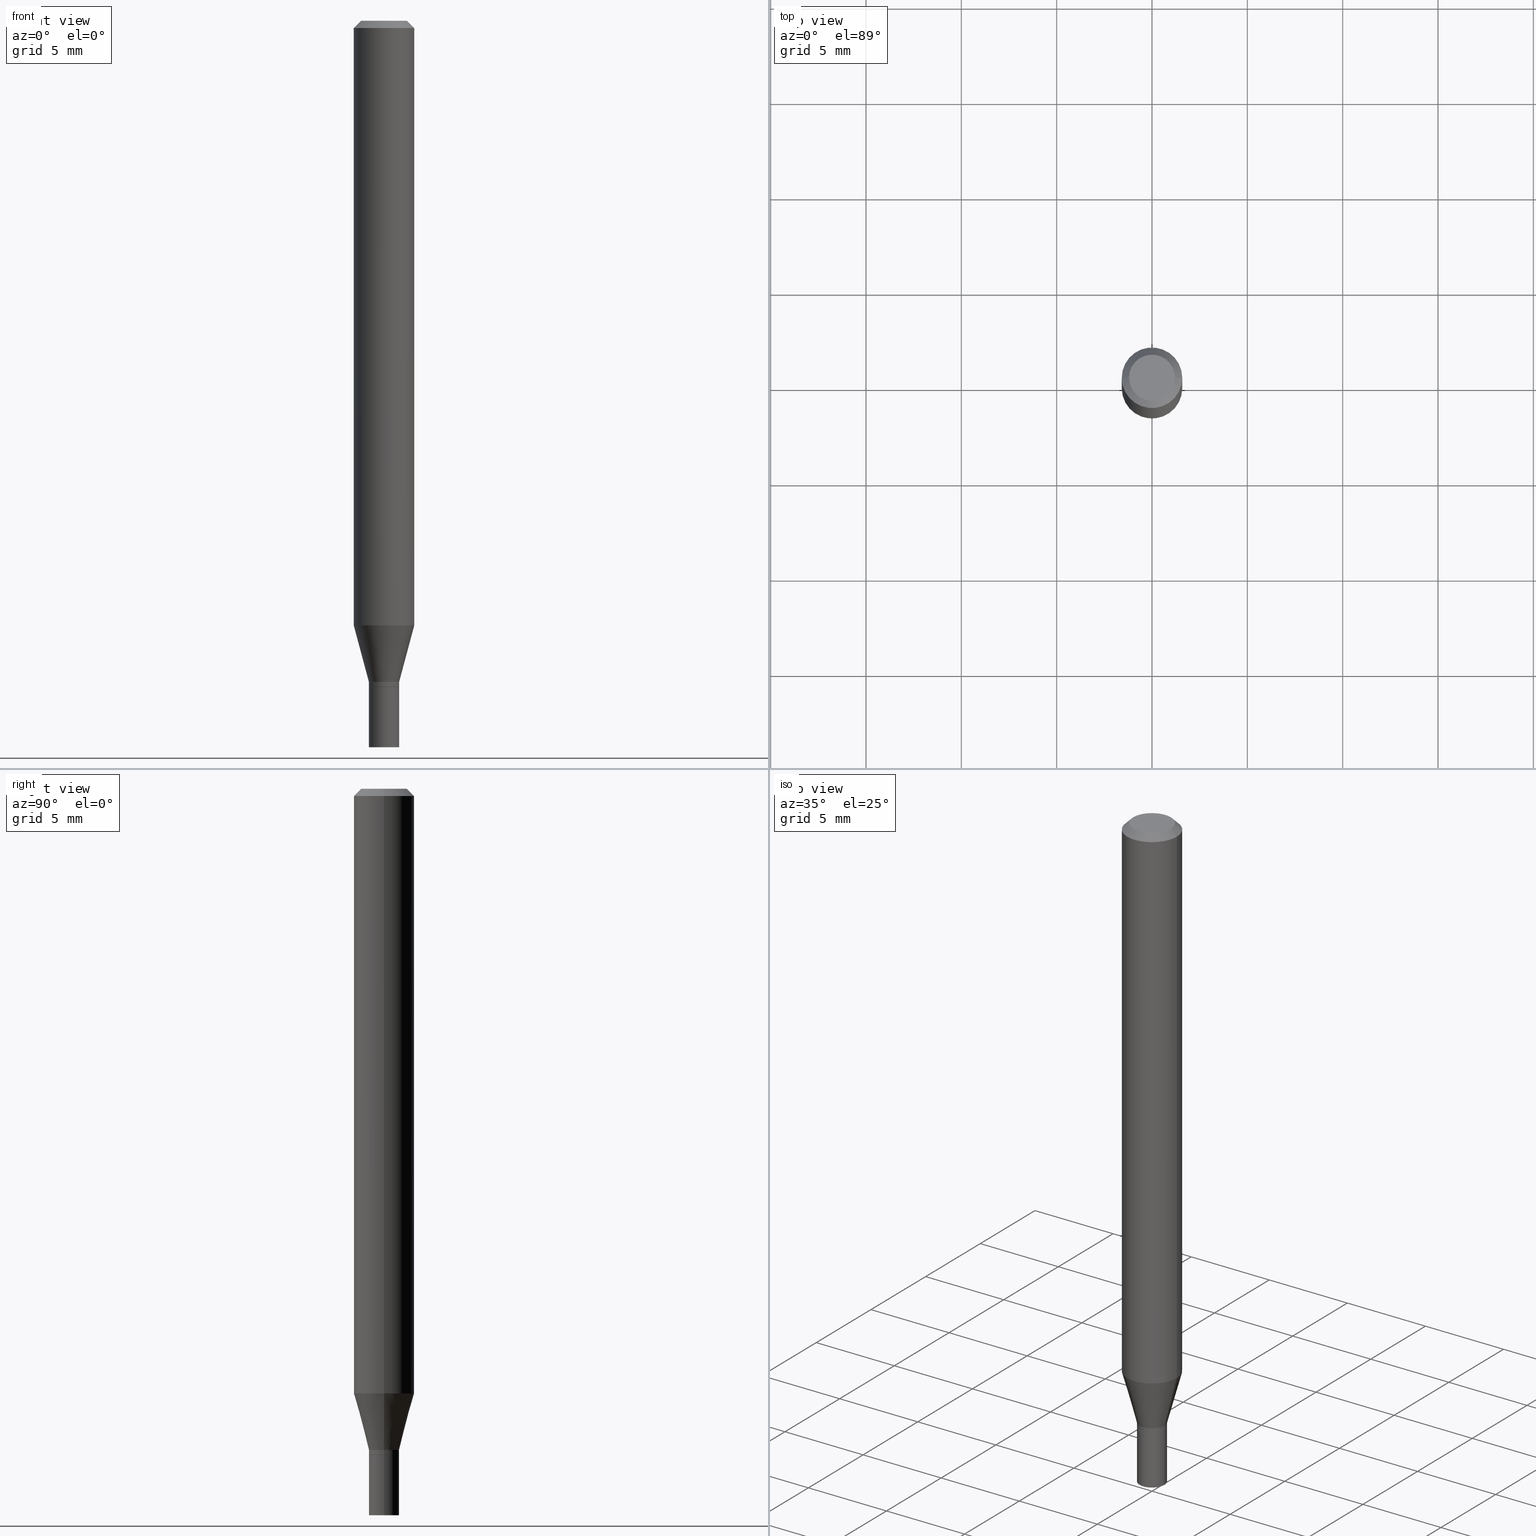
[diagram: canonical four-view strip — front | top / right | iso, engineering-drawing reading convention]
A machine part, canonical four-view strip (front | top / right | iso — engineering-drawing reading convention). The complete STEP part file that produces these views, byte-faithful:
ISO-10303-21;
HEADER;
FILE_DESCRIPTION (( 'STEP AP203' ),
    '1' );
FILE_NAME ('31750.STEP',
    '2024-03-13T16:35:21',
    ( '' ),
    ( '' ),
    'SwSTEP 2.0',
    'SolidWorks 2023',
    '' );
FILE_SCHEMA (( 'CONFIG_CONTROL_DESIGN' ));
ENDSEC;

DATA;
#1 = DIRECTION ( 'NONE',  ( -2.445468806185136597E-29, 3.491481338843145583E-15, 1.000000000000000000 ) ) ;
#2 = ORIENTED_EDGE ( 'NONE', *, *, #59, .T. ) ;
#3 = VECTOR ( 'NONE', #295, 39.37007874015748143 ) ;
#4 = PRODUCT_DEFINITION_FORMATION_WITH_SPECIFIED_SOURCE ( 'ANY', '', #251, .NOT_KNOWN. ) ;
#5 = DIRECTION ( 'NONE',  ( 1.000000000000000000, -6.982962677686261189E-15, 0.000000000000000000 ) ) ;
#6 = ORIENTED_EDGE ( 'NONE', *, *, #177, .T. ) ;
#7 = ORIENTED_EDGE ( 'NONE', *, *, #33, .F. ) ;
#8 = CARTESIAN_POINT ( 'NONE',  ( 3.362519608504562260E-29, -4.800786840909324930E-15, -1.375000000000000000 ) ) ;
#9 = CYLINDRICAL_SURFACE ( 'NONE', #111, 0.06250000000000000000 ) ;
#10 = AXIS2_PLACEMENT_3D ( 'NONE', #129, #231, #409 ) ;
#11 = CALENDAR_DATE ( 2024, 13, 3 ) ;
#12 = APPROVAL_PERSON_ORGANIZATION ( #451, #163, #418 ) ;
#13 = FACE_OUTER_BOUND ( 'NONE', #142, .T. ) ;
#14 = EDGE_CURVE ( 'NONE', #284, #464, #133, .T. ) ;
#15 = CARTESIAN_POINT ( 'NONE',  ( 3.338064920442711836E-29, -4.765872027520893280E-15, -1.364999999999999991 ) ) ;
#16 = AXIS2_PLACEMENT_3D ( 'NONE', #318, #146, #352 ) ;
#17 = DIRECTION ( 'NONE',  ( -2.445468806185136597E-29, 3.491481338843145583E-15, 1.000000000000000000 ) ) ;
#18 = ORIENTED_EDGE ( 'NONE', *, *, #239, .T. ) ;
#19 = AXIS2_PLACEMENT_3D ( 'NONE', #290, #325, #78 ) ;
#20 = LOCAL_TIME ( 12, 35, 21.00000000000000000, #240 ) ;
#21 = ORIENTED_EDGE ( 'NONE', *, *, #170, .F. ) ;
#22 = ADVANCED_FACE ( 'NONE', ( #109 ), #85, .T. ) ;
#23 = CYLINDRICAL_SURFACE ( 'NONE', #313, 0.06250000000000000000 ) ;
#24 = EDGE_CURVE ( 'NONE', #62, #218, #343, .T. ) ;
#25 = CARTESIAN_POINT ( 'NONE',  ( 3.338064920442711836E-29, -4.765872027520893280E-15, -1.364999999999999991 ) ) ;
#26 = ORIENTED_EDGE ( 'NONE', *, *, #417, .F. ) ;
#27 = CYLINDRICAL_SURFACE ( 'NONE', #212, 0.03125000000000000694 ) ;
#28 = CLOSED_SHELL ( 'NONE', ( #83, #207, #303, #97 ) ) ;
#29 = CONICAL_SURFACE ( 'NONE', #411, 0.03124999999999966693, 0.2617993877991502405 ) ;
#30 = DIRECTION ( 'NONE',  ( -2.445468806185136597E-29, 3.491481338843145583E-15, 1.000000000000000000 ) ) ;
#31 = ORIENTED_EDGE ( 'NONE', *, *, #196, .F. ) ;
#32 = DIRECTION ( 'NONE',  ( -2.438088387897960049E-29, 3.491481338843145188E-15, 1.000000000000000000 ) ) ;
#33 = EDGE_CURVE ( 'NONE', #62, #186, #449, .T. ) ;
#34 = DIRECTION ( 'NONE',  ( -2.445468806185136597E-29, 3.491481338843145583E-15, 1.000000000000000000 ) ) ;
#35 = DIRECTION ( 'NONE',  ( 1.000000000000000000, -6.982962677686278543E-15, 0.000000000000000000 ) ) ;
#36 = VERTEX_POINT ( 'NONE', #105 ) ;
#37 = ORIENTED_EDGE ( 'NONE', *, *, #239, .F. ) ;
#38 = PLANE ( 'NONE',  #268 ) ;
#39 = AXIS2_PLACEMENT_3D ( 'NONE', #435, #76, #321 ) ;
#40 = VERTEX_POINT ( 'NONE', #385 ) ;
#41 =( GEOMETRIC_REPRESENTATION_CONTEXT ( 3 ) GLOBAL_UNCERTAINTY_ASSIGNED_CONTEXT ( ( #138 ) ) GLOBAL_UNIT_ASSIGNED_CONTEXT ( ( #300, #124, #448 ) ) REPRESENTATION_CONTEXT ( 'NONE', 'WORKASPACE' ) );
#42 = CARTESIAN_POINT ( 'NONE',  ( 3.362519608504562260E-29, -4.800786840909324930E-15, -1.375000000000000000 ) ) ;
#43 = APPLICATION_CONTEXT ( 'configuration controlled 3d designs of mechanical parts and assemblies' ) ;
#44 = DIRECTION ( 'NONE',  ( 1.000000000000000000, -6.982962677686267499E-15, 4.876176775795935232E-29 ) ) ;
#45 = ORIENTED_EDGE ( 'NONE', *, *, #434, .T. ) ;
#46 = PERSON_AND_ORGANIZATION ( #155, #126 ) ;
#47 = EDGE_CURVE ( 'NONE', #70, #69, #280, .T. ) ;
#48 = ORIENTED_EDGE ( 'NONE', *, *, #170, .T. ) ;
#49 = FACE_OUTER_BOUND ( 'NONE', #98, .T. ) ;
#50 = APPROVAL_PERSON_ORGANIZATION ( #340, #271, #278 ) ;
#51 = DIRECTION ( 'NONE',  ( 1.000000000000000000, -6.982962677686274599E-15, 0.000000000000000000 ) ) ;
#52 = DATE_AND_TIME ( #375, #381 ) ;
#53 = CONICAL_SURFACE ( 'NONE', #410, 0.03075000000000000649, 0.7853981633974739252 ) ;
#54 = AXIS2_PLACEMENT_3D ( 'NONE', #368, #204, #364 ) ;
#55 = SECURITY_CLASSIFICATION_LEVEL ( 'unclassified' ) ;
#56 = ORIENTED_EDGE ( 'NONE', *, *, #196, .T. ) ;
#57 = AXIS2_PLACEMENT_3D ( 'NONE', #114, #293, #151 ) ;
#58 = EDGE_LOOP ( 'NONE', ( #432, #249, #227, #220 ) ) ;
#59 = EDGE_CURVE ( 'NONE', #299, #186, #107, .T. ) ;
#60 = APPROVAL_STATUS ( 'not_yet_approved' ) ;
#61 = CARTESIAN_POINT ( 'NONE',  ( 3.362519608504562260E-29, -4.800786840909324930E-15, -1.375000000000000000 ) ) ;
#62 = VERTEX_POINT ( 'NONE', #419 ) ;
#63 = DIRECTION ( 'NONE',  ( -0.2588190451025215166, 5.211531920934551042E-15, 0.9659258262890679791 ) ) ;
#64 = DIRECTION ( 'NONE',  ( 1.000000000000000000, -6.982962677686275388E-15, 0.000000000000000000 ) ) ;
#65 = CIRCLE ( 'NONE', #134, 0.03125000000000000694 ) ;
#66 = ORIENTED_EDGE ( 'NONE', *, *, #403, .F. ) ;
#67 = DIRECTION ( 'NONE',  ( -2.445468806185136877E-29, 3.491481338843145188E-15, 1.000000000000000000 ) ) ;
#68 = LINE ( 'NONE', #228, #380 ) ;
#69 = VERTEX_POINT ( 'NONE', #387 ) ;
#70 = VERTEX_POINT ( 'NONE', #214 ) ;
#71 = FACE_OUTER_BOUND ( 'NONE', #461, .T. ) ;
#72 = FACE_OUTER_BOUND ( 'NONE', #58, .T. ) ;
#73 = DIRECTION ( 'NONE',  ( -2.445468806185136597E-29, 3.491481338843145583E-15, 1.000000000000000000 ) ) ;
#74 = APPROVAL ( #302, 'UNSPECIFIED' ) ;
#75 = ORIENTED_EDGE ( 'NONE', *, *, #452, .T. ) ;
#76 = DIRECTION ( 'NONE',  ( -2.445468806185136597E-29, 3.491481338843145583E-15, 1.000000000000000000 ) ) ;
#77 = CONICAL_SURFACE ( 'NONE', #460, 0.06250000000000000000, 0.7853981633974563836 ) ;
#78 = DIRECTION ( 'NONE',  ( 1.000000000000000000, -6.982962677686267499E-15, 4.852736867747366768E-29 ) ) ;
#79 = ORIENTED_EDGE ( 'NONE', *, *, #363, .T. ) ;
#80 = CC_DESIGN_PERSON_AND_ORGANIZATION_ASSIGNMENT ( #200, #161, ( #251 ) ) ;
#81 = APPROVAL_DATE_TIME ( #52, #74 ) ;
#82 = CARTESIAN_POINT ( 'NONE',  ( 0.000000000000000000, 0.000000000000000000, 0.000000000000000000 ) ) ;
#83 = ADVANCED_FACE ( 'NONE', ( #345 ), #27, .T. ) ;
#84 = EDGE_CURVE ( 'NONE', #186, #62, #339, .T. ) ;
#85 = CONICAL_SURFACE ( 'NONE', #338, 0.03124999999999966693, 0.2617993877991502405 ) ;
#86 = AXIS2_PLACEMENT_3D ( 'NONE', #265, #122, #263 ) ;
#87 = DIRECTION ( 'NONE',  ( 1.000000000000000000, -6.982962677686266711E-15, 0.000000000000000000 ) ) ;
#88 = LOCAL_TIME ( 12, 35, 21.00000000000000000, #275 ) ;
#89 = CARTESIAN_POINT ( 'NONE',  ( 3.052858238161217332E-29, -4.358672472825852637E-15, -1.248373412263471760 ) ) ;
#90 = CARTESIAN_POINT ( 'NONE',  ( 0.03125000000000000694, -5.455439591942414011E-15, -1.500000000000000222 ) ) ;
#91 = CC_DESIGN_PERSON_AND_ORGANIZATION_ASSIGNMENT ( #46, #198, ( #307 ) ) ;
#92 = APPLICATION_CONTEXT ( 'configuration controlled 3d designs of mechanical parts and assemblies' ) ;
#93 = FACE_OUTER_BOUND ( 'NONE', #150, .T. ) ;
#94 = APPROVAL_DATE_TIME ( #457, #271 ) ;
#95 = VECTOR ( 'NONE', #67, 39.37007874015748143 ) ;
#96 = ORIENTED_EDGE ( 'NONE', *, *, #395, .F. ) ;
#97 = ADVANCED_FACE ( 'NONE', ( #314 ), #182, .F. ) ;
#98 = EDGE_LOOP ( 'NONE', ( #351, #104, #6, #397 ) ) ;
#99 = ADVANCED_FACE ( 'NONE', ( #71 ), #23, .T. ) ;
#100 = COORDINATED_UNIVERSAL_TIME_OFFSET ( 5, 0, .BEHIND. ) ;
#101 = CIRCLE ( 'NONE', #304, 0.06250000000000000000 ) ;
#102 = CC_DESIGN_DATE_AND_TIME_ASSIGNMENT ( #423, #174, ( #307 ) ) ;
#103 = APPROVAL_DATE_TIME ( #344, #163 ) ;
#104 = ORIENTED_EDGE ( 'NONE', *, *, #248, .T. ) ;
#105 = CARTESIAN_POINT ( 'NONE',  ( 0.03124999999999993061, -5.017258683917599261E-15, -1.374500000000000055 ) ) ;
#106 = ORIENTED_EDGE ( 'NONE', *, *, #84, .T. ) ;
#107 = LINE ( 'NONE', #390, #95 ) ;
#108 = CYLINDRICAL_SURFACE ( 'NONE', #217, 0.03124999999999979877 ) ;
#109 = FACE_OUTER_BOUND ( 'NONE', #224, .T. ) ;
#110 = DIRECTION ( 'NONE',  ( -0.7071067811865656694, 7.493145998870420424E-15, 0.7071067811865294761 ) ) ;
#111 = AXIS2_PLACEMENT_3D ( 'NONE', #252, #117, #406 ) ;
#112 = DIRECTION ( 'NONE',  ( -0.7071067811865531239, 2.468850131082316225E-15, -0.7071067811865416886 ) ) ;
#113 = EDGE_LOOP ( 'NONE', ( #153, #336 ) ) ;
#114 = CARTESIAN_POINT ( 'NONE',  ( 0.000000000000000000, 0.000000000000000000, 0.000000000000000000 ) ) ;
#115 = EDGE_CURVE ( 'NONE', #36, #62, #121, .T. ) ;
#116 = CARTESIAN_POINT ( 'NONE',  ( 5.895992206697910099E-45, -8.417914271318620386E-31, -2.410986470890828574E-16 ) ) ;
#117 = DIRECTION ( 'NONE',  ( -2.445468806185136597E-29, 3.491481338843145583E-15, 1.000000000000000000 ) ) ;
#118 = VECTOR ( 'NONE', #259, 39.37007874015748143 ) ;
#119 = APPLICATION_PROTOCOL_DEFINITION ( 'international standard', 'config_control_design', 1994, #92 ) ;
#120 = ADVANCED_FACE ( 'NONE', ( #442 ), #443, .F. ) ;
#121 = LINE ( 'NONE', #232, #140 ) ;
#122 = DIRECTION ( 'NONE',  ( -2.445468806185136597E-29, 3.491481338843145583E-15, 1.000000000000000000 ) ) ;
#123 = DIRECTION ( 'NONE',  ( -1.000000000000000000, 6.982962677686265922E-15, -4.876176775795935793E-29 ) ) ;
#124 =( NAMED_UNIT ( * ) PLANE_ANGLE_UNIT ( ) SI_UNIT ( $, .RADIAN. ) );
#125 = CIRCLE ( 'NONE', #10, 0.03125000000000000694 ) ;
#126 = ORGANIZATION ( 'UNSPECIFIED', 'UNSPECIFIED', '' ) ;
#127 = PERSON_AND_ORGANIZATION ( #155, #126 ) ;
#128 = CC_DESIGN_PERSON_AND_ORGANIZATION_ASSIGNMENT ( #171, #377, ( #4 ) ) ;
#129 = CARTESIAN_POINT ( 'NONE',  ( 3.668203209277704895E-29, -5.237222008264718177E-15, -1.500000000000000222 ) ) ;
#130 = CARTESIAN_POINT ( 'NONE',  ( 0.03075000000000000649, -5.015512943248178546E-15, -1.375000000000000000 ) ) ;
#131 = CARTESIAN_POINT ( 'NONE',  ( -0.03124999999999966693, -4.229205342785826785E-15, -1.364999999999999991 ) ) ;
#132 = CALENDAR_DATE ( 2024, 13, 3 ) ;
#133 = CIRCLE ( 'NONE', #369, 0.04749999999999999362 ) ;
#134 = AXIS2_PLACEMENT_3D ( 'NONE', #319, #1, #225 ) ;
#135 = ADVANCED_FACE ( 'NONE', ( #13 ), #405, .T. ) ;
#136 = APPROVAL_STATUS ( 'not_yet_approved' ) ;
#137 = ADVANCED_FACE ( 'NONE', ( #49 ), #358, .T. ) ;
#138 = UNCERTAINTY_MEASURE_WITH_UNIT (LENGTH_MEASURE( 1.000000000000000082E-05 ), #300, 'distance_accuracy_value', 'NONE');
#139 = ORIENTED_EDGE ( 'NONE', *, *, #337, .F. ) ;
#140 = VECTOR ( 'NONE', #160, 39.37007874015748143 ) ;
#141 = EDGE_LOOP ( 'NONE', ( #283, #180, #143, #26 ) ) ;
#142 = EDGE_LOOP ( 'NONE', ( #157, #229, #436, #242 ) ) ;
#143 = ORIENTED_EDGE ( 'NONE', *, *, #395, .T. ) ;
#144 = CARTESIAN_POINT ( 'NONE',  ( 0.000000000000000000, 0.000000000000000000, 0.000000000000000000 ) ) ;
#145 = ORIENTED_EDGE ( 'NONE', *, *, #185, .T. ) ;
#146 = DIRECTION ( 'NONE',  ( 2.438088387897960049E-29, -3.491481338843145188E-15, -1.000000000000000000 ) ) ;
#147 = FACE_OUTER_BOUND ( 'NONE', #347, .T. ) ;
#148 = AXIS2_PLACEMENT_3D ( 'NONE', #301, #447, #123 ) ;
#149 = VECTOR ( 'NONE', #203, 39.37007874015748143 ) ;
#150 = EDGE_LOOP ( 'NONE', ( #257, #139 ) ) ;
#151 = DIRECTION ( 'NONE',  ( 1.000000000000000000, -6.982962677686267499E-15, 4.876176775795935793E-29 ) ) ;
#152 = CARTESIAN_POINT ( 'NONE',  ( 0.03075000000000000649, -5.015512943248178546E-15, -1.375000000000000000 ) ) ;
#153 = ORIENTED_EDGE ( 'NONE', *, *, #47, .T. ) ;
#154 = CARTESIAN_POINT ( 'NONE',  ( -0.04749999999999999362, 3.578768372314206562E-16, -2.410986470890852239E-16 ) ) ;
#155 = PERSON ( 'UNSPECIFIED', 'UNSPECIFIED', 'UNSPECIFIED', ('UNSPECIFIED'), ('UNSPECIFIED'), ('UNSPECIFIED') ) ;
#156 = DIRECTION ( 'NONE',  ( -2.445468806185136597E-29, 3.491481338843145583E-15, 1.000000000000000000 ) ) ;
#157 = ORIENTED_EDGE ( 'NONE', *, *, #59, .F. ) ;
#158 = SECURITY_CLASSIFICATION ( '', '', #55 ) ;
#159 = CARTESIAN_POINT ( 'NONE',  ( 3.668203209277705088E-31, -5.237222008264718399E-17, -0.01499999999999999944 ) ) ;
#160 = DIRECTION ( 'NONE',  ( -2.445468806185136877E-29, 3.491481338843145188E-15, 1.000000000000000000 ) ) ;
#161 = PERSON_AND_ORGANIZATION_ROLE ( 'design_owner' ) ;
#162 = DIRECTION ( 'NONE',  ( -2.445468806185136597E-29, 3.491481338843145583E-15, 1.000000000000000000 ) ) ;
#163 = APPROVAL ( #136, 'UNSPECIFIED' ) ;
#164 = VECTOR ( 'NONE', #324, 39.37007874015748143 ) ;
#165 = AXIS2_PLACEMENT_3D ( 'NONE', #159, #17, #87 ) ;
#166 = CARTESIAN_POINT ( 'NONE',  ( 0.06250000000000000000, -4.811533449433679005E-16, -0.01499999999999999944 ) ) ;
#167 = PLANE ( 'NONE',  #370 ) ;
#168 = PERSON_AND_ORGANIZATION_ROLE ( 'creator' ) ;
#169 = ADVANCED_FACE ( 'NONE', ( #371 ), #53, .T. ) ;
#170 = EDGE_CURVE ( 'NONE', #316, #215, #101, .T. ) ;
#171 = PERSON_AND_ORGANIZATION ( #155, #126 ) ;
#172 = CIRCLE ( 'NONE', #401, 0.03075000000000000649 ) ;
#173 = DIRECTION ( 'NONE',  ( 1.000000000000000000, -6.982962677686267499E-15, 4.852736867747366768E-29 ) ) ;
#174 = DATE_TIME_ROLE ( 'creation_date' ) ;
#175 = CARTESIAN_POINT ( 'NONE',  ( 0.000000000000000000, 0.000000000000000000, 0.000000000000000000 ) ) ;
#176 = DIRECTION ( 'NONE',  ( -2.445468806185136597E-29, 3.491481338843145583E-15, 1.000000000000000000 ) ) ;
#177 = EDGE_CURVE ( 'NONE', #459, #36, #188, .T. ) ;
#178 = ORIENTED_EDGE ( 'NONE', *, *, #47, .F. ) ;
#179 = CIRCLE ( 'NONE', #408, 0.06250000000000000000 ) ;
#180 = ORIENTED_EDGE ( 'NONE', *, *, #403, .T. ) ;
#181 = CARTESIAN_POINT ( 'NONE',  ( 3.668203209277705088E-31, -5.237222008264718399E-17, -0.01499999999999999944 ) ) ;
#182 = PLANE ( 'NONE',  #16 ) ;
#183 = CARTESIAN_POINT ( 'NONE',  ( 3.668203209277704895E-29, -5.237222008264718177E-15, -1.500000000000000222 ) ) ;
#184 = CARTESIAN_POINT ( 'NONE',  ( 3.668203209277705088E-31, -5.237222008264718399E-17, -0.01499999999999999944 ) ) ;
#185 = EDGE_CURVE ( 'NONE', #425, #70, #399, .T. ) ;
#186 = VERTEX_POINT ( 'NONE', #131 ) ;
#187 = DIRECTION ( 'NONE',  ( -2.445468806185136597E-29, 3.491481338843145583E-15, 1.000000000000000000 ) ) ;
#188 = LINE ( 'NONE', #152, #118 ) ;
#189 = AXIS2_PLACEMENT_3D ( 'NONE', #222, #388, #353 ) ;
#190 = ORIENTED_EDGE ( 'NONE', *, *, #192, .T. ) ;
#191 = ORIENTED_EDGE ( 'NONE', *, *, #446, .F. ) ;
#192 = EDGE_CURVE ( 'NONE', #425, #221, #125, .T. ) ;
#193 = CARTESIAN_POINT ( 'NONE',  ( 0.06250000000000000000, -4.364351673553916694E-16, 3.047610484872459871E-30 ) ) ;
#194 = CARTESIAN_POINT ( 'NONE',  ( 0.03125000000000000694, -2.182175836776959087E-16, 1.523805242436230286E-30 ) ) ;
#195 = FACE_OUTER_BOUND ( 'NONE', #223, .T. ) ;
#196 = EDGE_CURVE ( 'NONE', #218, #40, #179, .T. ) ;
#197 = ORIENTED_EDGE ( 'NONE', *, *, #33, .T. ) ;
#198 = PERSON_AND_ORGANIZATION_ROLE ( 'creator' ) ;
#199 = VECTOR ( 'NONE', #323, 39.37007874015748143 ) ;
#200 = PERSON_AND_ORGANIZATION ( #155, #126 ) ;
#201 = DIRECTION ( 'NONE',  ( -2.438088387897960049E-29, 3.491481338843145188E-15, 1.000000000000000000 ) ) ;
#202 = DIRECTION ( 'NONE',  ( -2.445468806185136597E-29, 3.491481338843145583E-15, 1.000000000000000000 ) ) ;
#203 = DIRECTION ( 'NONE',  ( -2.445468806185136877E-29, 3.491481338843145188E-15, 1.000000000000000000 ) ) ;
#204 = DIRECTION ( 'NONE',  ( 0.000000000000000000, 0.000000000000000000, 1.000000000000000000 ) ) ;
#205 = AXIS2_PLACEMENT_3D ( 'NONE', #244, #34, #382 ) ;
#206 = APPLICATION_PROTOCOL_DEFINITION ( 'international standard', 'config_control_design', 1994, #43 ) ;
#207 = ADVANCED_FACE ( 'NONE', ( #93 ), #167, .F. ) ;
#208 = SHAPE_DEFINITION_REPRESENTATION ( #427, #334 ) ;
#209 = ORIENTED_EDGE ( 'NONE', *, *, #298, .T. ) ;
#210 = CARTESIAN_POINT ( 'NONE',  ( 3.338064920442711836E-29, -4.765872027520893280E-15, -1.364999999999999991 ) ) ;
#211 = CIRCLE ( 'NONE', #296, 0.03075000000000000649 ) ;
#212 = AXIS2_PLACEMENT_3D ( 'NONE', #393, #285, #250 ) ;
#213 = PERSON_AND_ORGANIZATION ( #155, #126 ) ;
#214 = CARTESIAN_POINT ( 'NONE',  ( 0.03125000000000000694, -5.019004424587020764E-15, -1.375000000000000000 ) ) ;
#215 = VERTEX_POINT ( 'NONE', #400 ) ;
#216 = DIRECTION ( 'NONE',  ( 1.000000000000000000, -6.982962677686275388E-15, 0.000000000000000000 ) ) ;
#217 = AXIS2_PLACEMENT_3D ( 'NONE', #144, #253, #44 ) ;
#218 = VERTEX_POINT ( 'NONE', #458 ) ;
#219 = DIRECTION ( 'NONE',  ( 1.000000000000000000, -6.982962677686275388E-15, 0.000000000000000000 ) ) ;
#220 = ORIENTED_EDGE ( 'NONE', *, *, #417, .T. ) ;
#221 = VERTEX_POINT ( 'NONE', #404 ) ;
#222 = CARTESIAN_POINT ( 'NONE',  ( 3.668203209277705088E-31, -5.237222008264718399E-17, -0.01499999999999999944 ) ) ;
#223 = EDGE_LOOP ( 'NONE', ( #209, #2, #7, #392 ) ) ;
#224 = EDGE_LOOP ( 'NONE', ( #430, #106, #320, #66 ) ) ;
#225 = DIRECTION ( 'NONE',  ( 1.000000000000000000, -6.982962677686261189E-15, 0.000000000000000000 ) ) ;
#226 = AXIS2_PLACEMENT_3D ( 'NONE', #330, #162, #234 ) ;
#227 = ORIENTED_EDGE ( 'NONE', *, *, #279, .T. ) ;
#228 = CARTESIAN_POINT ( 'NONE',  ( -0.03075000000000000649, -4.582294949663094520E-15, -1.375000000000000000 ) ) ;
#229 = ORIENTED_EDGE ( 'NONE', *, *, #315, .T. ) ;
#230 = CARTESIAN_POINT ( 'NONE',  ( -0.03125000000000000694, 2.220446049250313574E-16, -1.537167215704658582E-30 ) ) ;
#231 = DIRECTION ( 'NONE',  ( -2.445468806185136597E-29, 3.491481338843145583E-15, 1.000000000000000000 ) ) ;
#232 = CARTESIAN_POINT ( 'NONE',  ( 0.03124999999999979877, -2.182175836776944542E-16, 1.523805242436219951E-30 ) ) ;
#233 = VECTOR ( 'NONE', #63, 39.37007874015748143 ) ;
#234 = DIRECTION ( 'NONE',  ( 1.000000000000000000, -6.982962677686275388E-15, 0.000000000000000000 ) ) ;
#235 = CC_DESIGN_APPROVAL ( #74, ( #307 ) ) ;
#236 = FACE_OUTER_BOUND ( 'NONE', #378, .T. ) ;
#237 = EDGE_CURVE ( 'NONE', #241, #299, #68, .T. ) ;
#238 = COORDINATED_UNIVERSAL_TIME_OFFSET ( 5, 0, .BEHIND. ) ;
#239 = EDGE_CURVE ( 'NONE', #459, #241, #211, .T. ) ;
#240 = COORDINATED_UNIVERSAL_TIME_OFFSET ( 5, 0, .BEHIND. ) ;
#241 = VERTEX_POINT ( 'NONE', #437 ) ;
#242 = ORIENTED_EDGE ( 'NONE', *, *, #84, .F. ) ;
#243 = CIRCLE ( 'NONE', #39, 0.03124999999999993061 ) ;
#244 = CARTESIAN_POINT ( 'NONE',  ( 3.338064920442711836E-29, -4.765872027520893280E-15, -1.364999999999999991 ) ) ;
#245 = DESIGN_CONTEXT ( 'detailed design', #92, 'design' ) ;
#246 = EDGE_LOOP ( 'NONE', ( #190, #379, #178, #361 ) ) ;
#247 = DIRECTION ( 'NONE',  ( 1.000000000000000000, -6.982962677686274599E-15, 0.000000000000000000 ) ) ;
#248 = EDGE_CURVE ( 'NONE', #241, #459, #172, .T. ) ;
#249 = ORIENTED_EDGE ( 'NONE', *, *, #14, .F. ) ;
#250 = DIRECTION ( 'NONE',  ( 1.000000000000000000, -6.982962677686267499E-15, 4.876176775795935793E-29 ) ) ;
#251 = PRODUCT ( '31750', '31750', '', ( #335 ) ) ;
#252 = CARTESIAN_POINT ( 'NONE',  ( 0.000000000000000000, 0.000000000000000000, 0.000000000000000000 ) ) ;
#253 = DIRECTION ( 'NONE',  ( -2.445468806185136597E-29, 3.491481338843145583E-15, 1.000000000000000000 ) ) ;
#254 = CONICAL_SURFACE ( 'NONE', #189, 0.06250000000000000000, 0.7853981633974563836 ) ;
#255 = ORIENTED_EDGE ( 'NONE', *, *, #355, .F. ) ;
#256 = FACE_OUTER_BOUND ( 'NONE', #292, .T. ) ;
#257 = ORIENTED_EDGE ( 'NONE', *, *, #192, .F. ) ;
#258 = CARTESIAN_POINT ( 'NONE',  ( -0.03124999999999966693, -4.543827422595864339E-15, -1.364999999999999991 ) ) ;
#259 = DIRECTION ( 'NONE',  ( 0.7071067811865656694, -2.468850131082446387E-15, 0.7071067811865294761 ) ) ;
#260 = DIRECTION ( 'NONE',  ( -1.000000000000000000, 6.982962677686266711E-15, 0.000000000000000000 ) ) ;
#261 = CIRCLE ( 'NONE', #416, 0.03124999999999993061 ) ;
#262 = CIRCLE ( 'NONE', #165, 0.06250000000000000000 ) ;
#263 = DIRECTION ( 'NONE',  ( 1.000000000000000000, -6.982962677686270655E-15, 0.000000000000000000 ) ) ;
#264 = CARTESIAN_POINT ( 'NONE',  ( 3.576687321579069994E-29, -5.368277968210015545E-15, -1.500000000000000222 ) ) ;
#265 = CARTESIAN_POINT ( 'NONE',  ( 3.052858238161217332E-29, -4.358672472825852637E-15, -1.248373412263471760 ) ) ;
#266 = DIRECTION ( 'NONE',  ( 1.000000000000000000, -6.982962677686266711E-15, 4.876176775795935793E-29 ) ) ;
#267 = ADVANCED_FACE ( 'NONE', ( #72 ), #254, .T. ) ;
#268 = AXIS2_PLACEMENT_3D ( 'NONE', #8, #32, #398 ) ;
#269 = CC_DESIGN_APPROVAL ( #271, ( #158 ) ) ;
#270 = LINE ( 'NONE', #414, #149 ) ;
#271 = APPROVAL ( #60, 'UNSPECIFIED' ) ;
#272 = LENGTH_MEASURE_WITH_UNIT ( LENGTH_MEASURE( 0.02539999999999999897 ), #331 );
#273 = DIRECTION ( 'NONE',  ( -2.445468806185136597E-29, 3.491481338843145583E-15, 1.000000000000000000 ) ) ;
#274 = EDGE_CURVE ( 'NONE', #186, #40, #349, .T. ) ;
#275 = COORDINATED_UNIVERSAL_TIME_OFFSET ( 5, 0, .BEHIND. ) ;
#276 = AXIS2_PLACEMENT_3D ( 'NONE', #183, #187, #5 ) ;
#277 = LOCAL_TIME ( 12, 35, 21.00000000000000000, #100 ) ;
#278 = APPROVAL_ROLE ( '' ) ;
#279 = EDGE_CURVE ( 'NONE', #284, #215, #431, .T. ) ;
#280 = CIRCLE ( 'NONE', #327, 0.03125000000000000694 ) ;
#281 = ORIENTED_EDGE ( 'NONE', *, *, #279, .F. ) ;
#282 = CC_DESIGN_PERSON_AND_ORGANIZATION_ASSIGNMENT ( #213, #168, ( #4 ) ) ;
#283 = ORIENTED_EDGE ( 'NONE', *, *, #434, .F. ) ;
#284 = VERTEX_POINT ( 'NONE', #154 ) ;
#285 = DIRECTION ( 'NONE',  ( -2.445468806185136597E-29, 3.491481338843145583E-15, 1.000000000000000000 ) ) ;
#286 = ADVANCED_FACE ( 'NONE', ( #256 ), #38, .F. ) ;
#287 = CARTESIAN_POINT ( 'NONE',  ( -0.03124999999999993061, -4.576996495314873696E-15, -1.374500000000000055 ) ) ;
#288 = EDGE_LOOP ( 'NONE', ( #357, #79 ) ) ;
#289 = VECTOR ( 'NONE', #422, 39.37007874015748143 ) ;
#290 = CARTESIAN_POINT ( 'NONE',  ( 5.895992206697910099E-45, -8.417914271318620386E-31, -2.410986470890828574E-16 ) ) ;
#291 = AXIS2_PLACEMENT_3D ( 'NONE', #82, #367, #407 ) ;
#292 = EDGE_LOOP ( 'NONE', ( #37, #341 ) ) ;
#293 = DIRECTION ( 'NONE',  ( -2.445468806185136597E-29, 3.491481338843145583E-15, 1.000000000000000000 ) ) ;
#294 = CARTESIAN_POINT ( 'NONE',  ( -0.06250000000000000000, 3.840629472727444916E-16, -0.01499999999999999944 ) ) ;
#295 = DIRECTION ( 'NONE',  ( -2.445468806185136877E-29, 3.491481338843145188E-15, 1.000000000000000000 ) ) ;
#296 = AXIS2_PLACEMENT_3D ( 'NONE', #42, #156, #219 ) ;
#297 = CC_DESIGN_APPROVAL ( #163, ( #4 ) ) ;
#298 = EDGE_CURVE ( 'NONE', #36, #299, #243, .T. ) ;
#299 = VERTEX_POINT ( 'NONE', #287 ) ;
#300 =( CONVERSION_BASED_UNIT ( 'INCH', #272 ) LENGTH_UNIT ( ) NAMED_UNIT ( #444 ) );
#301 = CARTESIAN_POINT ( 'NONE',  ( 3.316907271900976096E-16, 0.04749999999999999362, -2.863946871395908498E-16 ) ) ;
#302 = APPROVAL_STATUS ( 'not_yet_approved' ) ;
#303 = ADVANCED_FACE ( 'NONE', ( #147 ), #426, .T. ) ;
#304 = AXIS2_PLACEMENT_3D ( 'NONE', #184, #73, #354 ) ;
#305 = CC_DESIGN_SECURITY_CLASSIFICATION ( #158, ( #4 ) ) ;
#306 = CARTESIAN_POINT ( 'NONE',  ( 0.04749999999999999362, -4.035134999187582567E-16, -2.410986470890802443E-16 ) ) ;
#307 = PRODUCT_DEFINITION ( 'UNKNOWN', '', #4, #245 ) ;
#308 = ORIENTED_EDGE ( 'NONE', *, *, #237, .T. ) ;
#309 = CALENDAR_DATE ( 2024, 13, 3 ) ;
#310 = ADVANCED_FACE ( 'NONE', ( #350 ), #77, .T. ) ;
#311 = DIRECTION ( 'NONE',  ( -2.445468806185136597E-29, 3.491481338843145583E-15, 1.000000000000000000 ) ) ;
#312 = ORIENTED_EDGE ( 'NONE', *, *, #363, .F. ) ;
#313 = AXIS2_PLACEMENT_3D ( 'NONE', #175, #202, #266 ) ;
#314 = FACE_OUTER_BOUND ( 'NONE', #113, .T. ) ;
#315 = EDGE_CURVE ( 'NONE', #299, #36, #261, .T. ) ;
#316 = VERTEX_POINT ( 'NONE', #465 ) ;
#317 = DIRECTION ( 'NONE',  ( -2.445468806185136597E-29, 3.491481338843145583E-15, 1.000000000000000000 ) ) ;
#318 = CARTESIAN_POINT ( 'NONE',  ( 2.182175836777295092E-16, 0.03124999999999520522, -1.375000000000000000 ) ) ;
#319 = CARTESIAN_POINT ( 'NONE',  ( 3.362519608504562260E-29, -4.800786840909324930E-15, -1.375000000000000000 ) ) ;
#320 = ORIENTED_EDGE ( 'NONE', *, *, #24, .T. ) ;
#321 = DIRECTION ( 'NONE',  ( 1.000000000000000000, -6.982962677686278543E-15, 0.000000000000000000 ) ) ;
#322 = EDGE_LOOP ( 'NONE', ( #312, #75, #48, #281 ) ) ;
#323 = DIRECTION ( 'NONE',  ( -2.445468806185136877E-29, 3.491481338843145188E-15, 1.000000000000000000 ) ) ;
#324 = DIRECTION ( 'NONE',  ( -2.445468806185136877E-29, 3.491481338843145188E-15, 1.000000000000000000 ) ) ;
#325 = DIRECTION ( 'NONE',  ( -2.445468806185136597E-29, 3.491481338843145583E-15, 1.000000000000000000 ) ) ;
#326 = COORDINATED_UNIVERSAL_TIME_OFFSET ( 5, 0, .BEHIND. ) ;
#327 = AXIS2_PLACEMENT_3D ( 'NONE', #61, #30, #463 ) ;
#328 = ADVANCED_FACE ( 'NONE', ( #195 ), #108, .T. ) ;
#329 = LINE ( 'NONE', #230, #3 ) ;
#330 = CARTESIAN_POINT ( 'NONE',  ( 3.362519608504562260E-29, -4.800786840909324930E-15, -1.375000000000000000 ) ) ;
#331 =( LENGTH_UNIT ( ) NAMED_UNIT ( * ) SI_UNIT ( $, .METRE. ) );
#332 = CC_DESIGN_DATE_AND_TIME_ASSIGNMENT ( #415, #454, ( #158 ) ) ;
#333 = CLOSED_SHELL ( 'NONE', ( #328, #169, #310, #99, #429, #22, #396, #267, #120, #286, #137, #135 ) ) ;
#334 = ADVANCED_BREP_SHAPE_REPRESENTATION ( '31750', ( #365, #362, #54 ), #41 ) ;
#335 = MECHANICAL_CONTEXT ( 'NONE', #43, 'mechanical' ) ;
#336 = ORIENTED_EDGE ( 'NONE', *, *, #355, .T. ) ;
#337 = EDGE_CURVE ( 'NONE', #221, #425, #420, .T. ) ;
#338 = AXIS2_PLACEMENT_3D ( 'NONE', #210, #176, #428 ) ;
#339 = CIRCLE ( 'NONE', #205, 0.03124999999999966693 ) ;
#340 = PERSON_AND_ORGANIZATION ( #155, #126 ) ;
#341 = ORIENTED_EDGE ( 'NONE', *, *, #248, .F. ) ;
#342 = PERSON_AND_ORGANIZATION_ROLE ( 'classification_officer' ) ;
#343 = LINE ( 'NONE', #346, #289 ) ;
#344 = DATE_AND_TIME ( #132, #20 ) ;
#345 = FACE_OUTER_BOUND ( 'NONE', #246, .T. ) ;
#346 = CARTESIAN_POINT ( 'NONE',  ( 0.03124999999999966693, -4.984089611198587537E-15, -1.364999999999999991 ) ) ;
#347 = EDGE_LOOP ( 'NONE', ( #191, #424, #145, #255 ) ) ;
#348 = LOCAL_TIME ( 12, 35, 21.00000000000000000, #326 ) ;
#349 = LINE ( 'NONE', #258, #233 ) ;
#350 = FACE_OUTER_BOUND ( 'NONE', #322, .T. ) ;
#351 = ORIENTED_EDGE ( 'NONE', *, *, #237, .F. ) ;
#352 = DIRECTION ( 'NONE',  ( -1.000000000000000000, 6.982962677686265922E-15, -4.876176775795935793E-29 ) ) ;
#353 = DIRECTION ( 'NONE',  ( -1.000000000000000000, 6.982962677686266711E-15, 0.000000000000000000 ) ) ;
#354 = DIRECTION ( 'NONE',  ( 1.000000000000000000, -6.982962677686266711E-15, 0.000000000000000000 ) ) ;
#355 = EDGE_CURVE ( 'NONE', #69, #70, #65, .T. ) ;
#356 = ORIENTED_EDGE ( 'NONE', *, *, #177, .F. ) ;
#357 = ORIENTED_EDGE ( 'NONE', *, *, #14, .T. ) ;
#358 = CONICAL_SURFACE ( 'NONE', #226, 0.03075000000000000649, 0.7853981633974739252 ) ;
#359 = LINE ( 'NONE', #193, #199 ) ;
#360 = DIRECTION ( 'NONE',  ( -2.445468806185136597E-29, 3.491481338843145583E-15, 1.000000000000000000 ) ) ;
#361 = ORIENTED_EDGE ( 'NONE', *, *, #185, .F. ) ;
#362 = MANIFOLD_SOLID_BREP ( 'Body-Move/Copy2[2]', #333 ) ;
#363 = EDGE_CURVE ( 'NONE', #464, #284, #389, .T. ) ;
#364 = DIRECTION ( 'NONE',  ( 1.000000000000000000, 0.000000000000000000, 0.000000000000000000 ) ) ;
#365 = MANIFOLD_SOLID_BREP ( 'Body-Move/Copy2[1]', #28 ) ;
#366 = ORIENTED_EDGE ( 'NONE', *, *, #298, .F. ) ;
#367 = DIRECTION ( 'NONE',  ( -2.445468806185136597E-29, 3.491481338843145583E-15, 1.000000000000000000 ) ) ;
#368 = CARTESIAN_POINT ( 'NONE',  ( 0.000000000000000000, 0.000000000000000000, 0.000000000000000000 ) ) ;
#369 = AXIS2_PLACEMENT_3D ( 'NONE', #116, #374, #173 ) ;
#370 = AXIS2_PLACEMENT_3D ( 'NONE', #264, #201, #439 ) ;
#371 = FACE_OUTER_BOUND ( 'NONE', #456, .T. ) ;
#372 = DIRECTION ( 'NONE',  ( 0.7071067811865531239, -7.319954787623273400E-15, -0.7071067811865416886 ) ) ;
#373 = PRODUCT_RELATED_PRODUCT_CATEGORY ( 'detail', '', ( #251 ) ) ;
#374 = DIRECTION ( 'NONE',  ( -2.445468806185136597E-29, 3.491481338843145583E-15, 1.000000000000000000 ) ) ;
#375 = CALENDAR_DATE ( 2024, 13, 3 ) ;
#376 = CALENDAR_DATE ( 2024, 13, 3 ) ;
#377 = PERSON_AND_ORGANIZATION_ROLE ( 'design_supplier' ) ;
#378 = EDGE_LOOP ( 'NONE', ( #197, #386, #31, #466 ) ) ;
#379 = ORIENTED_EDGE ( 'NONE', *, *, #446, .T. ) ;
#380 = VECTOR ( 'NONE', #110, 39.37007874015748143 ) ;
#381 = LOCAL_TIME ( 12, 35, 21.00000000000000000, #238 ) ;
#382 = DIRECTION ( 'NONE',  ( 1.000000000000000000, -6.982962677686274599E-15, 0.000000000000000000 ) ) ;
#383 = CARTESIAN_POINT ( 'NONE',  ( 3.362519608504562260E-29, -4.800786840909324930E-15, -1.375000000000000000 ) ) ;
#384 = PERSON_AND_ORGANIZATION ( #155, #126 ) ;
#385 = CARTESIAN_POINT ( 'NONE',  ( -0.06250000000000000000, -3.914583262975789231E-15, -1.248373412263471760 ) ) ;
#386 = ORIENTED_EDGE ( 'NONE', *, *, #274, .T. ) ;
#387 = CARTESIAN_POINT ( 'NONE',  ( -0.03125000000000000694, -4.796959819661991034E-15, -1.375000000000000000 ) ) ;
#388 = DIRECTION ( 'NONE',  ( 2.445468806185136597E-29, -3.491481338843145583E-15, -1.000000000000000000 ) ) ;
#389 = CIRCLE ( 'NONE', #19, 0.04749999999999999362 ) ;
#390 = CARTESIAN_POINT ( 'NONE',  ( -0.03124999999999979877, 2.220446049250298783E-16, -1.537167215704648248E-30 ) ) ;
#391 = CARTESIAN_POINT ( 'NONE',  ( 3.362519608504562260E-29, -4.800786840909324930E-15, -1.375000000000000000 ) ) ;
#392 = ORIENTED_EDGE ( 'NONE', *, *, #115, .F. ) ;
#393 = CARTESIAN_POINT ( 'NONE',  ( 0.000000000000000000, 0.000000000000000000, 0.000000000000000000 ) ) ;
#394 = DIRECTION ( 'NONE',  ( 2.445468806185136597E-29, -3.491481338843145583E-15, -1.000000000000000000 ) ) ;
#395 = EDGE_CURVE ( 'NONE', #218, #316, #359, .T. ) ;
#396 = ADVANCED_FACE ( 'NONE', ( #438 ), #9, .T. ) ;
#397 = ORIENTED_EDGE ( 'NONE', *, *, #315, .F. ) ;
#398 = DIRECTION ( 'NONE',  ( 1.000000000000000000, -6.982962677686265922E-15, 4.876176775795935793E-29 ) ) ;
#399 = LINE ( 'NONE', #194, #164 ) ;
#400 = CARTESIAN_POINT ( 'NONE',  ( -0.06250000000000000000, -1.761433136604187439E-15, -0.01499999999999999944 ) ) ;
#401 = AXIS2_PLACEMENT_3D ( 'NONE', #391, #360, #216 ) ;
#402 = CARTESIAN_POINT ( 'NONE',  ( 3.361296874101470580E-29, -4.799041100239904215E-15, -1.374500000000000055 ) ) ;
#403 = EDGE_CURVE ( 'NONE', #40, #218, #433, .T. ) ;
#404 = CARTESIAN_POINT ( 'NONE',  ( -0.03125000000000000694, -4.796959819661991034E-15, -1.500000000000000222 ) ) ;
#405 = CYLINDRICAL_SURFACE ( 'NONE', #291, 0.03124999999999979877 ) ;
#406 = DIRECTION ( 'NONE',  ( 1.000000000000000000, -6.982962677686266711E-15, 4.876176775795935793E-29 ) ) ;
#407 = DIRECTION ( 'NONE',  ( 1.000000000000000000, -6.982962677686267499E-15, 4.876176775795935232E-29 ) ) ;
#408 = AXIS2_PLACEMENT_3D ( 'NONE', #89, #273, #413 ) ;
#409 = DIRECTION ( 'NONE',  ( 1.000000000000000000, -6.982962677686261189E-15, 0.000000000000000000 ) ) ;
#410 = AXIS2_PLACEMENT_3D ( 'NONE', #383, #462, #64 ) ;
#411 = AXIS2_PLACEMENT_3D ( 'NONE', #15, #445, #51 ) ;
#412 = APPROVAL_ROLE ( '' ) ;
#413 = DIRECTION ( 'NONE',  ( 1.000000000000000000, -6.982962677686270655E-15, 0.000000000000000000 ) ) ;
#414 = CARTESIAN_POINT ( 'NONE',  ( -0.06250000000000000000, 4.440892098500626162E-16, -3.074334431409316114E-30 ) ) ;
#415 = DATE_AND_TIME ( #309, #88 ) ;
#416 = AXIS2_PLACEMENT_3D ( 'NONE', #402, #317, #35 ) ;
#417 = EDGE_CURVE ( 'NONE', #215, #316, #262, .T. ) ;
#418 = APPROVAL_ROLE ( '' ) ;
#419 = CARTESIAN_POINT ( 'NONE',  ( 0.03124999999999966693, -4.984089611198587537E-15, -1.364999999999999991 ) ) ;
#420 = CIRCLE ( 'NONE', #276, 0.03125000000000000694 ) ;
#421 = APPROVAL_PERSON_ORGANIZATION ( #127, #74, #412 ) ;
#422 = DIRECTION ( 'NONE',  ( 0.2588190451025215166, 1.565188264969620784E-15, 0.9659258262890679791 ) ) ;
#423 = DATE_AND_TIME ( #11, #348 ) ;
#424 = ORIENTED_EDGE ( 'NONE', *, *, #337, .T. ) ;
#425 = VERTEX_POINT ( 'NONE', #90 ) ;
#426 = CYLINDRICAL_SURFACE ( 'NONE', #57, 0.03125000000000000694 ) ;
#427 = PRODUCT_DEFINITION_SHAPE ( 'NONE', 'NONE',  #307 ) ;
#428 = DIRECTION ( 'NONE',  ( 1.000000000000000000, -6.982962677686274599E-15, 0.000000000000000000 ) ) ;
#429 = ADVANCED_FACE ( 'NONE', ( #236 ), #29, .T. ) ;
#430 = ORIENTED_EDGE ( 'NONE', *, *, #274, .F. ) ;
#431 = LINE ( 'NONE', #294, #440 ) ;
#432 = ORIENTED_EDGE ( 'NONE', *, *, #452, .F. ) ;
#433 = CIRCLE ( 'NONE', #86, 0.06250000000000000000 ) ;
#434 = EDGE_CURVE ( 'NONE', #40, #215, #270, .T. ) ;
#435 = CARTESIAN_POINT ( 'NONE',  ( 3.361296874101470580E-29, -4.799041100239904215E-15, -1.374500000000000055 ) ) ;
#436 = ORIENTED_EDGE ( 'NONE', *, *, #115, .T. ) ;
#437 = CARTESIAN_POINT ( 'NONE',  ( -0.03075000000000000649, -4.579645722488984108E-15, -1.375000000000000000 ) ) ;
#438 = FACE_OUTER_BOUND ( 'NONE', #141, .T. ) ;
#439 = DIRECTION ( 'NONE',  ( 1.000000000000000000, -6.982962677686265922E-15, 4.876176775795935793E-29 ) ) ;
#440 = VECTOR ( 'NONE', #112, 39.37007874015748854 ) ;
#441 = VECTOR ( 'NONE', #372, 39.37007874015748854 ) ;
#442 = FACE_OUTER_BOUND ( 'NONE', #288, .T. ) ;
#443 = PLANE ( 'NONE',  #148 ) ;
#444 = DIMENSIONAL_EXPONENTS ( 1.000000000000000000, 0.000000000000000000, 0.000000000000000000, 0.000000000000000000, 0.000000000000000000, 0.000000000000000000, 0.000000000000000000 ) ;
#445 = DIRECTION ( 'NONE',  ( -2.445468806185136597E-29, 3.491481338843145583E-15, 1.000000000000000000 ) ) ;
#446 = EDGE_CURVE ( 'NONE', #221, #69, #329, .T. ) ;
#447 = DIRECTION ( 'NONE',  ( 2.438088387897960049E-29, -3.491481338843145188E-15, -1.000000000000000000 ) ) ;
#448 =( NAMED_UNIT ( * ) SI_UNIT ( $, .STERADIAN. ) SOLID_ANGLE_UNIT ( ) );
#449 = CIRCLE ( 'NONE', #453, 0.03124999999999966693 ) ;
#450 = LINE ( 'NONE', #166, #441 ) ;
#451 = PERSON_AND_ORGANIZATION ( #155, #126 ) ;
#452 = EDGE_CURVE ( 'NONE', #464, #316, #450, .T. ) ;
#453 = AXIS2_PLACEMENT_3D ( 'NONE', #25, #311, #247 ) ;
#454 = DATE_TIME_ROLE ( 'classification_date' ) ;
#455 = CC_DESIGN_PERSON_AND_ORGANIZATION_ASSIGNMENT ( #384, #342, ( #158 ) ) ;
#456 = EDGE_LOOP ( 'NONE', ( #18, #308, #366, #356 ) ) ;
#457 = DATE_AND_TIME ( #376, #277 ) ;
#458 = CARTESIAN_POINT ( 'NONE',  ( 0.06250000000000000000, -4.795107640181243517E-15, -1.248373412263471760 ) ) ;
#459 = VERTEX_POINT ( 'NONE', #130 ) ;
#460 = AXIS2_PLACEMENT_3D ( 'NONE', #181, #394, #260 ) ;
#461 = EDGE_LOOP ( 'NONE', ( #56, #45, #21, #96 ) ) ;
#462 = DIRECTION ( 'NONE',  ( -2.445468806185136597E-29, 3.491481338843145583E-15, 1.000000000000000000 ) ) ;
#463 = DIRECTION ( 'NONE',  ( 1.000000000000000000, -6.982962677686261189E-15, 0.000000000000000000 ) ) ;
#464 = VERTEX_POINT ( 'NONE', #306 ) ;
#465 = CARTESIAN_POINT ( 'NONE',  ( 0.06250000000000000000, -4.888073874380388472E-16, -0.01499999999999999944 ) ) ;
#466 = ORIENTED_EDGE ( 'NONE', *, *, #24, .F. ) ;
ENDSEC;
END-ISO-10303-21;
